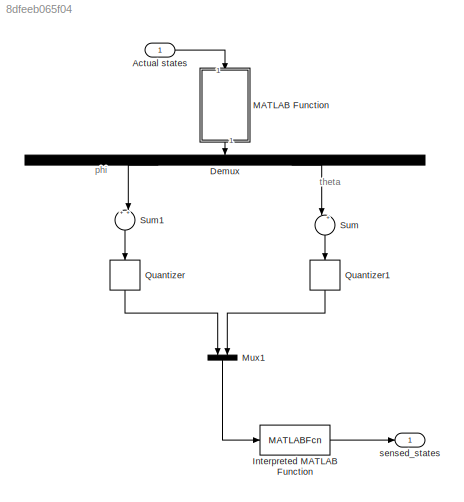
MODEL slx_8dfeeb065f04
KIND model
CONFIG AbsTol = auto
CONFIG EnableMultiTasking = off
CONFIG FixedStep = auto
CONFIG MaxStep = auto
CONFIG MinStep = auto
CONFIG RelTol = 1e-3
CONFIG SampleTimeConstraint = Unconstrained
CONFIG Solver = VariableStepAuto
CONFIG SolverName = VariableStepAuto
CONFIG StartTime = 0.0
CONFIG StopTime = 10.0
BLOCK [Inport] Actual states
  IconDisplay = Port number
  PortDimensions = 4
  SampleTime = Ts
BLOCK [Demux] Demux
  DisplayOption = bar
  Outputs = 2
  Ports = [1, 2]
BLOCK [MATLABFcn] Interpreted MATLAB Function
  MATLABFcn = sensors(u)
  OutputDimensions = 4
  Ports = [1, 1]
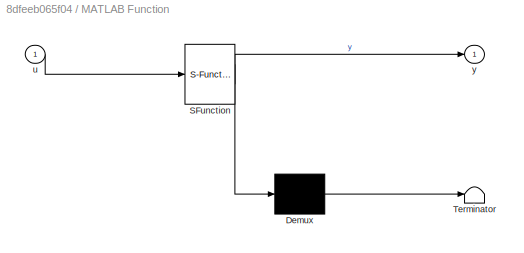
BLOCK [SubSystem] MATLAB Function
  ErrorFcn = Stateflow.Translate.translate
  PermitHierarchicalResolution = ExplicitOnly
  Ports = [1, 1]
  RequestExecContextInheritance = off
  SFBlockType = MATLAB Function
  TreatAsAtomicUnit = on
BLOCK [Demux] MATLAB Function/ Demux 
  Outputs = 1
  Ports = [1, 1]
BLOCK [S-Function] MATLAB Function/ SFunction 
  EnableBusSupport = on
  FunctionName = sf_sfun
  PortCounts = [1 2]
  Ports = [1, 2]
  SFcnIsStateOwnerBlock = off
  SFunctionDeploymentMode = off
  Tag = Stateflow S-Function 4
BLOCK [Terminator] MATLAB Function/ Terminator 
BLOCK [Inport] MATLAB Function/u
  IconDisplay = Port number
BLOCK [Outport] MATLAB Function/y
  IconDisplay = Port number
BLOCK [Mux] Mux1
  DisplayOption = bar
  Inputs = 2
  Ports = [2, 1]
BLOCK [Quantizer] Quantizer
  QuantizationInterval = 1/sensitivity_encoder
BLOCK [Quantizer] Quantizer1
  QuantizationInterval = 1/sensitivity_giroscopio
BLOCK [Sum] Sum
  IconShape = round
  InputSameDT = off
  Inputs = |++
  OutDataTypeStr = Inherit: Inherit via internal rule
  Ports = [2, 1]
  SaturateOnIntegerOverflow = off
BLOCK [Sum] Sum1
  IconShape = round
  InputSameDT = off
  Inputs = ++|
  OutDataTypeStr = Inherit: Inherit via internal rule
  Ports = [2, 1]
  SaturateOnIntegerOverflow = off
BLOCK [Outport] sensed_states
  IconDisplay = Port number
  PortDimensions = 4
  SampleTime = Ts
ANNOTATION (root): phi
ANNOTATION (root): theta
LINE Actual states:1 -> MATLAB Function:1
LINE Demux:1 -> Sum1:2
LINE Demux:2 -> Sum:1
LINE Interpreted MATLAB Function:1 -> sensed_states:1
LINE MATLAB Function:1 -> Demux:1
LINE Mux1:1 -> Interpreted MATLAB Function:1
LINE Quantizer1:1 -> Mux1:2
LINE Quantizer:1 -> Mux1:1
LINE Sum1:1 -> Quantizer:1
LINE Sum:1 -> Quantizer1:1
CHART MATLAB Function states=1 transitions=1
  STATE_LABEL 'eML_blk_kernel()'
  STATE_LABEL 'SCRIPT:\nfunction y = fcn(u)\n\ny = [u(1),u(3)];\n'
